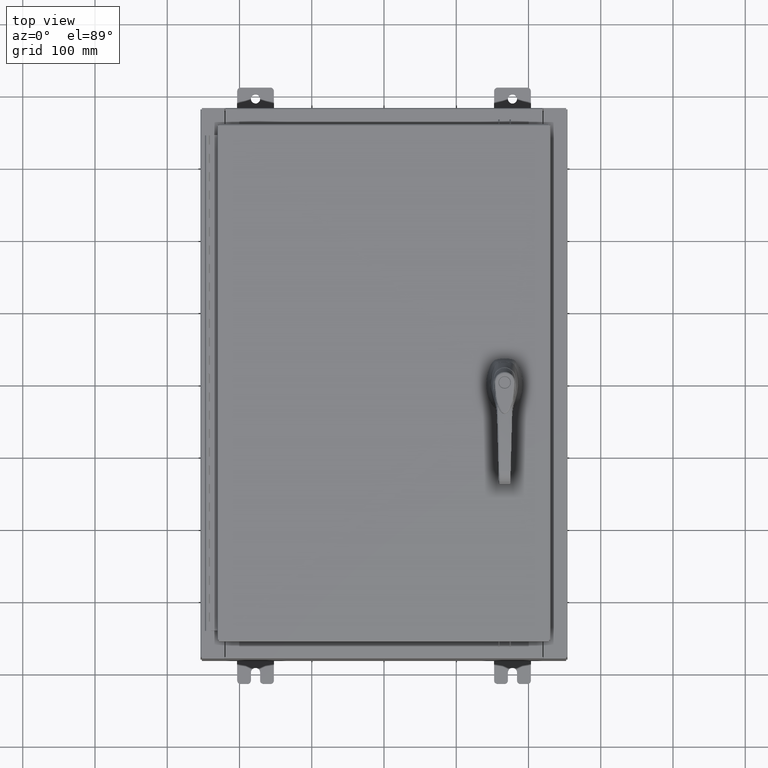
[diagram: clean part render]
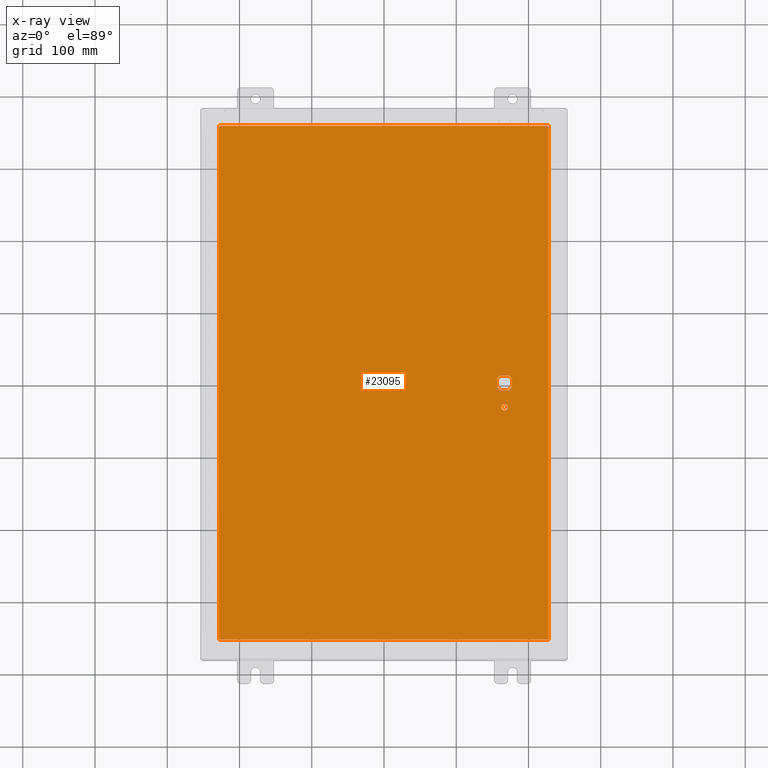
[diagram: x-ray — body ghosted, one internal face saturated and labeled with its STEP entity id]
A machine part, top view, then the same camera in x-ray: the body is ghosted and one INTERNAL B-rep face — a face not visible from any outside direction — is saturated and labeled: STEP entity #23095.
In plain terms, the highlighted planar face has unit normal (0, 0, -1).
Its self-contained STEP definition (entity closure, byte-faithful):
#39 = CARTESIAN_POINT ( 'NONE',  ( 6.175000000000075300, -0.2002273707563079800, -0.07470000000000003000 ) ) ;
#3910 = CARTESIAN_POINT ( 'NONE',  ( 6.980999999999926200, -0.2002273707563080300, -0.07470000000000003000 ) ) ;
#4335 = CARTESIAN_POINT ( 'NONE',  ( -8.990299999999996000, -14.00629999999999800, -0.07469999999999800400 ) ) ;
#4987 = DIRECTION ( 'NONE',  ( -1.000000000000000000, 0.0000000000000000000, 0.0000000000000000000 ) ) ;
#5584 = EDGE_CURVE ( 'NONE', #64747, #52815, #93882, .T. ) ;
#6710 = ORIENTED_EDGE ( 'NONE', *, *, #63856, .T. ) ;
#6796 = CARTESIAN_POINT ( 'NONE',  ( -8.990299999999996000, -14.00629999999999600, -0.07470000000000000300 ) ) ;
#7622 = DIRECTION ( 'NONE',  ( 0.0000000000000000000, 1.000000000000000000, 0.0000000000000000000 ) ) ;
#7834 = DIRECTION ( 'NONE',  ( -0.0000000000000000000, -0.0000000000000000000, 1.000000000000000000 ) ) ;
#7992 = ORIENTED_EDGE ( 'NONE', *, *, #87802, .T. ) ;
#8178 = CARTESIAN_POINT ( 'NONE',  ( 6.980999999999926200, 0.0000000000000000000, -0.07470000000000003000 ) ) ;
#8432 = EDGE_CURVE ( 'NONE', #77854, #98970, #20709, .T. ) ;
#8628 = CIRCLE ( 'NONE', #13327, 0.4499999999999156900 ) ;
#8991 = LINE ( 'NONE', #34742, #54702 ) ;
#9193 = ORIENTED_EDGE ( 'NONE', *, *, #72349, .T. ) ;
#9461 = VERTEX_POINT ( 'NONE', #14792 ) ;
#10205 = DIRECTION ( 'NONE',  ( -0.0000000000000000000, -0.0000000000000000000, 1.000000000000000000 ) ) ;
#12488 = DIRECTION ( 'NONE',  ( -0.0000000000000000000, -0.0000000000000000000, 1.000000000000000000 ) ) ;
#12906 = VECTOR ( 'NONE', #34831, 39.37007874015748100 ) ;
#13327 = AXIS2_PLACEMENT_3D ( 'NONE', #62571, #7834, #71687 ) ;
#13410 = EDGE_CURVE ( 'NONE', #98970, #77226, #60214, .T. ) ;
#14621 = ORIENTED_EDGE ( 'NONE', *, *, #22467, .F. ) ;
#14792 = CARTESIAN_POINT ( 'NONE',  ( 6.980999999999926200, 0.2002273707563080300, -0.07470000000000003000 ) ) ;
#15397 = ORIENTED_EDGE ( 'NONE', *, *, #25953, .F. ) ;
#16010 = ORIENTED_EDGE ( 'NONE', *, *, #47335, .T. ) ;
#20709 = CIRCLE ( 'NONE', #45585, 0.4499999999999156900 ) ;
#22467 = EDGE_CURVE ( 'NONE', #9461, #23321, #82125, .T. ) ;
#23095 = ADVANCED_FACE ( 'NONE', ( #117916, #93504, #90644 ), #89906, .T. ) ;
#23321 = VERTEX_POINT ( 'NONE', #3910 ) ;
#25953 = EDGE_CURVE ( 'NONE', #52815, #53890, #30254, .T. ) ;
#26442 = DIRECTION ( 'NONE',  ( -1.000000000000000000, 0.0000000000000000000, -0.0000000000000000000 ) ) ;
#26589 = CARTESIAN_POINT ( 'NONE',  ( 6.578000000000000300, -1.338000000000000100, -0.07470000000000003000 ) ) ;
#28162 = VECTOR ( 'NONE', #67391, 39.37007874015748100 ) ;
#28164 = AXIS2_PLACEMENT_3D ( 'NONE', #53578, #81078, #26442 ) ;
#30166 = VERTEX_POINT ( 'NONE', #85747 ) ;
#30254 = LINE ( 'NONE', #64581, #97391 ) ;
#32565 = CARTESIAN_POINT ( 'NONE',  ( 0.0000000000000000000, 0.4029999999999252000, -0.07470000000000003000 ) ) ;
#34742 = CARTESIAN_POINT ( 'NONE',  ( 8.990300000000001300, -14.00629999999999800, -0.07470000000000076600 ) ) ;
#34831 = DIRECTION ( 'NONE',  ( 1.000000000000000000, 0.0000000000000000000, 0.0000000000000000000 ) ) ;
#35742 = DIRECTION ( 'NONE',  ( -1.000000000000000000, 0.0000000000000000000, 0.0000000000000000000 ) ) ;
#37985 = AXIS2_PLACEMENT_3D ( 'NONE', #67136, #12488, #76282 ) ;
#39216 = AXIS2_PLACEMENT_3D ( 'NONE', #64909, #10205, #74026 ) ;
#39274 = EDGE_LOOP ( 'NONE', ( #106657, #60577, #15397, #78347 ) ) ;
#39417 = EDGE_CURVE ( 'NONE', #108360, #64747, #8991, .T. ) ;
#39574 = CARTESIAN_POINT ( 'NONE',  ( 6.377772629243691100, -0.4029999999999250300, -0.07470000000000003000 ) ) ;
#39735 = AXIS2_PLACEMENT_3D ( 'NONE', #26589, #90447, #35742 ) ;
#40896 = CARTESIAN_POINT ( 'NONE',  ( 6.749500000000001200, -1.338000000000000100, -0.07470000000000003000 ) ) ;
#45585 = AXIS2_PLACEMENT_3D ( 'NONE', #46895, #110801, #56037 ) ;
#46895 = CARTESIAN_POINT ( 'NONE',  ( 6.578000000000000300, 0.0000000000000000000, -0.07470000000000003000 ) ) ;
#46923 = CARTESIAN_POINT ( 'NONE',  ( 6.578000000000000300, 0.0000000000000000000, -0.07470000000000003000 ) ) ;
#47335 = EDGE_CURVE ( 'NONE', #9461, #71848, #63392, .T. ) ;
#52815 = VERTEX_POINT ( 'NONE', #107740 ) ;
#53567 = EDGE_CURVE ( 'NONE', #82446, #110117, #55301, .T. ) ;
#53578 = CARTESIAN_POINT ( 'NONE',  ( 0.0000000000000000000, 0.0000000000000000000, -0.07470000000000000300 ) ) ;
#53890 = VERTEX_POINT ( 'NONE', #6796 ) ;
#54590 = ORIENTED_EDGE ( 'NONE', *, *, #108903, .T. ) ;
#54608 = EDGE_CURVE ( 'NONE', #53890, #108360, #93695, .T. ) ;
#54702 = VECTOR ( 'NONE', #7622, 39.37007874015748100 ) ;
#55301 = CIRCLE ( 'NONE', #37985, 0.1715000000000000700 ) ;
#56037 = DIRECTION ( 'NONE',  ( -1.000000000000000000, 8.881784197001256300E-016, 0.0000000000000000000 ) ) ;
#56064 = DIRECTION ( 'NONE',  ( -1.000000000000000000, 0.0000000000000000000, 0.0000000000000000000 ) ) ;
#56560 = CIRCLE ( 'NONE', #85109, 0.4499999999999156900 ) ;
#58222 = CARTESIAN_POINT ( 'NONE',  ( 6.175000000000075300, 0.0000000000000000000, -0.07470000000000003000 ) ) ;
#60214 = LINE ( 'NONE', #117202, #12906 ) ;
#60577 = ORIENTED_EDGE ( 'NONE', *, *, #54608, .F. ) ;
#62571 = CARTESIAN_POINT ( 'NONE',  ( 6.578000000000000300, 0.0000000000000000000, -0.07470000000000003000 ) ) ;
#63392 = CIRCLE ( 'NONE', #39216, 0.4499999999999156900 ) ;
#63856 = EDGE_CURVE ( 'NONE', #93551, #77854, #98132, .T. ) ;
#63990 = VECTOR ( 'NONE', #4987, 39.37007874015748100 ) ;
#64581 = CARTESIAN_POINT ( 'NONE',  ( -8.990299999999997700, 14.00630000000000100, -0.07470000000000019700 ) ) ;
#64747 = VERTEX_POINT ( 'NONE', #102135 ) ;
#64877 = EDGE_CURVE ( 'NONE', #30166, #93551, #56560, .T. ) ;
#64909 = CARTESIAN_POINT ( 'NONE',  ( 6.578000000000000300, 0.0000000000000000000, -0.07470000000000003000 ) ) ;
#66820 = LINE ( 'NONE', #32565, #63990 ) ;
#67136 = CARTESIAN_POINT ( 'NONE',  ( 6.578000000000000300, -1.338000000000000100, -0.07470000000000003000 ) ) ;
#67391 = DIRECTION ( 'NONE',  ( 0.0000000000000000000, -1.000000000000000000, 0.0000000000000000000 ) ) ;
#69358 = VECTOR ( 'NONE', #94261, 39.37007874015748100 ) ;
#69545 = VECTOR ( 'NONE', #74495, 39.37007874015748100 ) ;
#71687 = DIRECTION ( 'NONE',  ( -1.000000000000000000, 0.0000000000000000000, 0.0000000000000000000 ) ) ;
#71848 = VERTEX_POINT ( 'NONE', #104781 ) ;
#72349 = EDGE_CURVE ( 'NONE', #110117, #82446, #98639, .T. ) ;
#74026 = DIRECTION ( 'NONE',  ( -1.000000000000000000, 0.0000000000000000000, 0.0000000000000000000 ) ) ;
#74495 = DIRECTION ( 'NONE',  ( -1.000000000000000000, -0.0000000000000000000, -0.0000000000000000000 ) ) ;
#76282 = DIRECTION ( 'NONE',  ( -1.000000000000000000, 0.0000000000000000000, 0.0000000000000000000 ) ) ;
#77226 = VERTEX_POINT ( 'NONE', #103771 ) ;
#77854 = VERTEX_POINT ( 'NONE', #39 ) ;
#78347 = ORIENTED_EDGE ( 'NONE', *, *, #5584, .F. ) ;
#79239 = VECTOR ( 'NONE', #90407, 39.37007874015748100 ) ;
#79972 = CARTESIAN_POINT ( 'NONE',  ( 8.990300000000001300, -14.00629999999999800, -0.07470000000000000300 ) ) ;
#81078 = DIRECTION ( 'NONE',  ( 0.0000000000000000000, 0.0000000000000000000, -1.000000000000000000 ) ) ;
#82125 = LINE ( 'NONE', #8178, #79239 ) ;
#82371 = EDGE_LOOP ( 'NONE', ( #7992, #14621, #16010, #54590, #101236, #6710, #98534, #111031 ) ) ;
#82446 = VERTEX_POINT ( 'NONE', #40896 ) ;
#83070 = CARTESIAN_POINT ( 'NONE',  ( 6.406500000000000300, -1.338000000000000100, -0.07470000000000003000 ) ) ;
#85109 = AXIS2_PLACEMENT_3D ( 'NONE', #46923, #110833, #56064 ) ;
#85747 = CARTESIAN_POINT ( 'NONE',  ( 6.377772629243691100, 0.4029999999999252000, -0.07470000000000003000 ) ) ;
#86968 = EDGE_LOOP ( 'NONE', ( #116882, #9193 ) ) ;
#87802 = EDGE_CURVE ( 'NONE', #77226, #23321, #8628, .T. ) ;
#89906 = PLANE ( 'NONE',  #28164 ) ;
#90407 = DIRECTION ( 'NONE',  ( 0.0000000000000000000, -1.000000000000000000, 0.0000000000000000000 ) ) ;
#90447 = DIRECTION ( 'NONE',  ( -0.0000000000000000000, -0.0000000000000000000, 1.000000000000000000 ) ) ;
#90644 = FACE_BOUND ( 'NONE', #82371, .T. ) ;
#93504 = FACE_OUTER_BOUND ( 'NONE', #39274, .T. ) ;
#93551 = VERTEX_POINT ( 'NONE', #96177 ) ;
#93695 = LINE ( 'NONE', #4335, #69358 ) ;
#93882 = LINE ( 'NONE', #101739, #69545 ) ;
#94261 = DIRECTION ( 'NONE',  ( 1.000000000000000000, -0.0000000000000000000, -0.0000000000000000000 ) ) ;
#96177 = CARTESIAN_POINT ( 'NONE',  ( 6.175000000000075300, 0.2002273707563080300, -0.07470000000000003000 ) ) ;
#97391 = VECTOR ( 'NONE', #110145, 39.37007874015748100 ) ;
#98132 = LINE ( 'NONE', #58222, #28162 ) ;
#98534 = ORIENTED_EDGE ( 'NONE', *, *, #8432, .T. ) ;
#98639 = CIRCLE ( 'NONE', #39735, 0.1715000000000000700 ) ;
#98970 = VERTEX_POINT ( 'NONE', #39574 ) ;
#101236 = ORIENTED_EDGE ( 'NONE', *, *, #64877, .T. ) ;
#101739 = CARTESIAN_POINT ( 'NONE',  ( 8.990300000000001300, 14.00629999999999800, -0.07470000000000019700 ) ) ;
#102135 = CARTESIAN_POINT ( 'NONE',  ( 8.990299999999999500, 14.00629999999999800, -0.07470000000000000300 ) ) ;
#103771 = CARTESIAN_POINT ( 'NONE',  ( 6.778227370756310300, -0.4029999999999252000, -0.07470000000000003000 ) ) ;
#104781 = CARTESIAN_POINT ( 'NONE',  ( 6.778227370756310300, 0.4029999999999250300, -0.07470000000000003000 ) ) ;
#106657 = ORIENTED_EDGE ( 'NONE', *, *, #39417, .F. ) ;
#107740 = CARTESIAN_POINT ( 'NONE',  ( -8.990299999999997700, 14.00629999999999800, -0.07470000000000000300 ) ) ;
#108360 = VERTEX_POINT ( 'NONE', #79972 ) ;
#108903 = EDGE_CURVE ( 'NONE', #71848, #30166, #66820, .T. ) ;
#110117 = VERTEX_POINT ( 'NONE', #83070 ) ;
#110145 = DIRECTION ( 'NONE',  ( 0.0000000000000000000, -1.000000000000000000, 0.0000000000000000000 ) ) ;
#110801 = DIRECTION ( 'NONE',  ( -0.0000000000000000000, -0.0000000000000000000, 1.000000000000000000 ) ) ;
#110833 = DIRECTION ( 'NONE',  ( -0.0000000000000000000, -0.0000000000000000000, 1.000000000000000000 ) ) ;
#111031 = ORIENTED_EDGE ( 'NONE', *, *, #13410, .T. ) ;
#116882 = ORIENTED_EDGE ( 'NONE', *, *, #53567, .T. ) ;
#117202 = CARTESIAN_POINT ( 'NONE',  ( 0.0000000000000000000, -0.4029999999999252000, -0.07470000000000003000 ) ) ;
#117916 = FACE_BOUND ( 'NONE', #86968, .T. ) ;